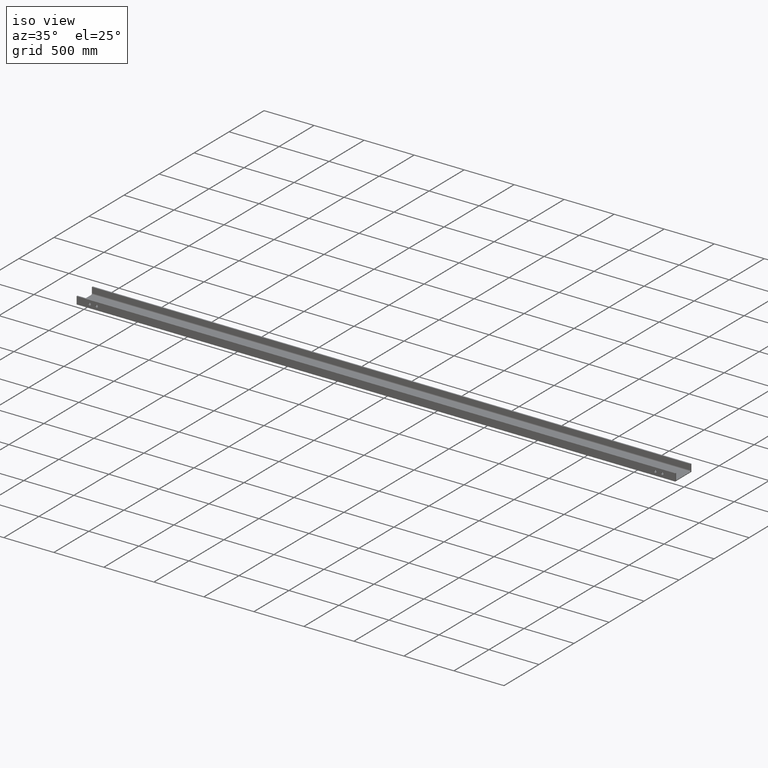
[diagram: clean part render]
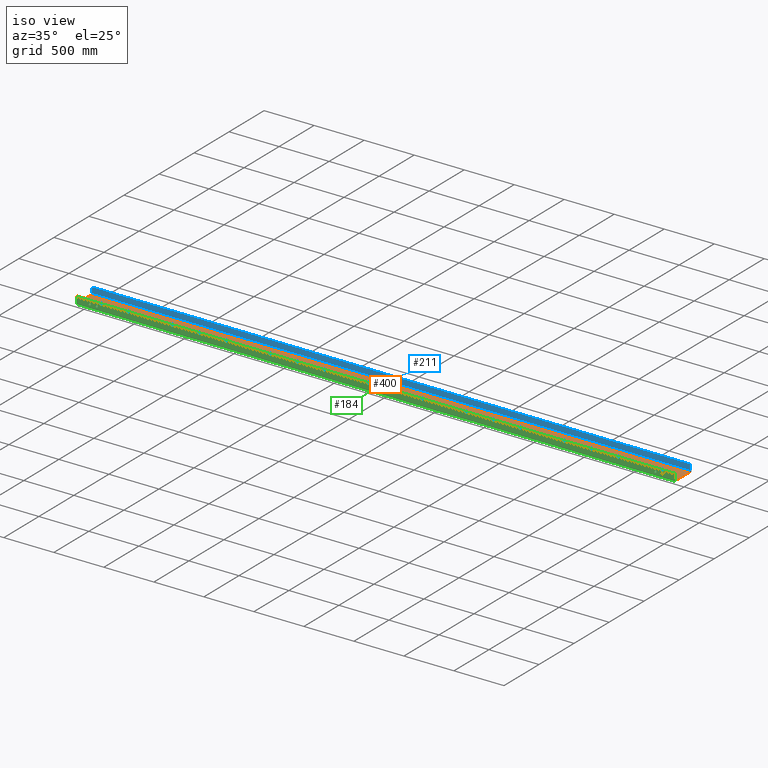
[diagram: same view with three faces highlighted in distinct colors, each labeled with its STEP entity id]
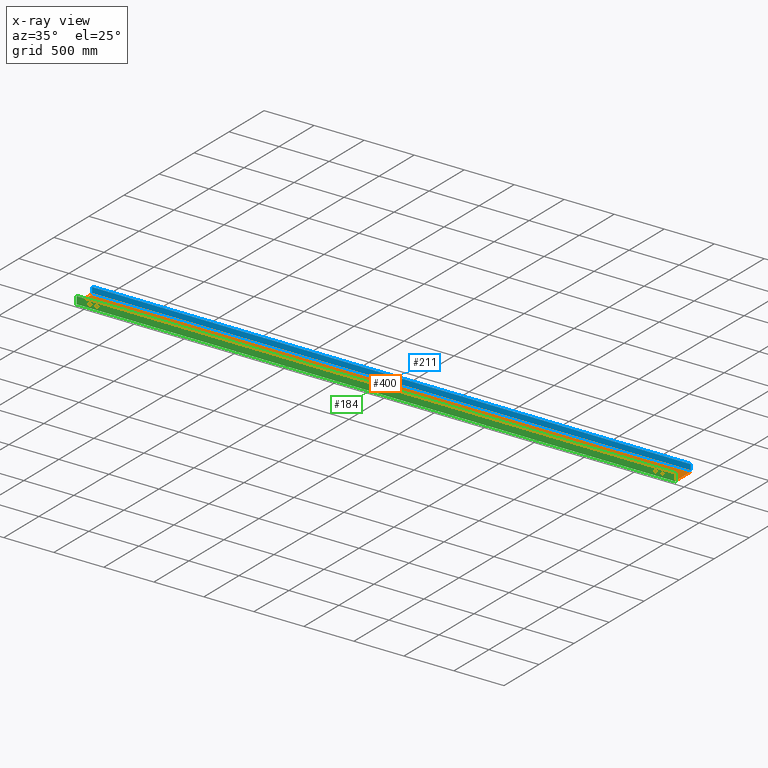
[diagram: x-ray of the same camera — body ghosted, the three highlighted faces saturated]
A machine part, iso view with three faces highlighted in distinct colors.
The next image is the same camera in x-ray (body ghosted, the three faces saturated) — at least one of them is partly hidden behind the body in this view.
Their STEP definitions:

[orange] entity #400 — the highlighted planar face has unit normal (-0, 0, 1).
#2 = LINE ( 'NONE', #35, #212 ) ;
#11 = CARTESIAN_POINT ( 'NONE',  ( -2992.500000000000000, 90.99999999999927525, -7.200000000000271960 ) ) ;
#15 = CARTESIAN_POINT ( 'NONE',  ( 2992.500000000000000, 91.00000000000110845, -7.200000000000271960 ) ) ;
#25 = DIRECTION ( 'NONE',  ( 0.000000000000000000, -1.000000000000000000, 3.550464257150331619E-15 ) ) ;
#35 = CARTESIAN_POINT ( 'NONE',  ( -2992.500000000000000, 90.99999999999927525, -7.200000000000271960 ) ) ;
#62 = DIRECTION ( 'NONE',  ( 0.000000000000000000, -1.000000000000000000, 3.550464257150332014E-15 ) ) ;
#77 = ORIENTED_EDGE ( 'NONE', *, *, #476, .T. ) ;
#80 = CARTESIAN_POINT ( 'NONE',  ( -2992.500000000000000, 90.99999999999927525, -7.200000000000271960 ) ) ;
#113 = DIRECTION ( 'NONE',  ( -1.087016172001559413E-30, 3.550464257150332014E-15, 1.000000000000000000 ) ) ;
#135 = LINE ( 'NONE', #15, #663 ) ;
#147 = EDGE_LOOP ( 'NONE', ( #414, #151, #419, #77 ) ) ;
#151 = ORIENTED_EDGE ( 'NONE', *, *, #288, .F. ) ;
#153 = DIRECTION ( 'NONE',  ( 1.000000000000000000, 3.061616997868382648E-16, -0.000000000000000000 ) ) ;
#185 = EDGE_CURVE ( 'NONE', #240, #609, #135, .T. ) ;
#212 = VECTOR ( 'NONE', #153, 1000.000000000000000 ) ;
#216 = EDGE_CURVE ( 'NONE', #446, #426, #594, .T. ) ;
#240 = VERTEX_POINT ( 'NONE', #355 ) ;
#288 = EDGE_CURVE ( 'NONE', #446, #240, #2, .T. ) ;
#291 = FACE_OUTER_BOUND ( 'NONE', #147, .T. ) ;
#336 = PLANE ( 'NONE',  #579 ) ;
#355 = CARTESIAN_POINT ( 'NONE',  ( 2992.500000000000000, 91.00000000000110845, -7.200000000000271960 ) ) ;
#360 = LINE ( 'NONE', #478, #435 ) ;
#400 = ADVANCED_FACE ( 'NONE', ( #291 ), #336, .T. ) ;
#414 = ORIENTED_EDGE ( 'NONE', *, *, #185, .F. ) ;
#419 = ORIENTED_EDGE ( 'NONE', *, *, #216, .T. ) ;
#426 = VERTEX_POINT ( 'NONE', #633 ) ;
#435 = VECTOR ( 'NONE', #584, 1000.000000000000000 ) ;
#446 = VERTEX_POINT ( 'NONE', #11 ) ;
#476 = EDGE_CURVE ( 'NONE', #426, #609, #360, .T. ) ;
#478 = CARTESIAN_POINT ( 'NONE',  ( -2992.500000000000000, -91.00000000000079581, -7.199999999999626255 ) ) ;
#579 = AXIS2_PLACEMENT_3D ( 'NONE', #627, #113, #62 ) ;
#584 = DIRECTION ( 'NONE',  ( 1.000000000000000000, 3.061616997868382648E-16, -0.000000000000000000 ) ) ;
#591 = DIRECTION ( 'NONE',  ( 0.000000000000000000, -1.000000000000000000, 3.550464257150331619E-15 ) ) ;
#594 = LINE ( 'NONE', #80, #625 ) ;
#609 = VERTEX_POINT ( 'NONE', #615 ) ;
#615 = CARTESIAN_POINT ( 'NONE',  ( 2992.500000000000000, -90.99999999999897682, -7.199999999999626255 ) ) ;
#625 = VECTOR ( 'NONE', #25, 1000.000000000000000 ) ;
#627 = CARTESIAN_POINT ( 'NONE',  ( -2992.500000000000000, 90.99999999999927525, -7.200000000000271960 ) ) ;
#633 = CARTESIAN_POINT ( 'NONE',  ( -2992.500000000000000, -91.00000000000079581, -7.199999999999626255 ) ) ;
#663 = VECTOR ( 'NONE', #591, 1000.000000000000000 ) ;

[blue] entity #211 — the highlighted planar face has unit normal (0, -1, 0).
#23 = FACE_OUTER_BOUND ( 'NONE', #632, .T. ) ;
#54 = CARTESIAN_POINT ( 'NONE',  ( -2992.500000000000000, 102.9999999999995168, 61.29999999999964899 ) ) ;
#64 = VERTEX_POINT ( 'NONE', #289 ) ;
#68 = ORIENTED_EDGE ( 'NONE', *, *, #526, .F. ) ;
#103 = VECTOR ( 'NONE', #561, 1000.000000000000000 ) ;
#116 = VECTOR ( 'NONE', #563, 1000.000000000000000 ) ;
#126 = AXIS2_PLACEMENT_3D ( 'NONE', #582, #708, #641 ) ;
#152 = CARTESIAN_POINT ( 'NONE',  ( -2992.500000000000000, 102.9999999999995168, 61.29999999999964899 ) ) ;
#170 = LINE ( 'NONE', #348, #116 ) ;
#211 = ADVANCED_FACE ( 'NONE', ( #23 ), #361, .T. ) ;
#279 = LINE ( 'NONE', #518, #103 ) ;
#289 = CARTESIAN_POINT ( 'NONE',  ( 2992.500000000000000, 103.0000000000011084, 4.799999999999649880 ) ) ;
#312 = VERTEX_POINT ( 'NONE', #671 ) ;
#323 = VERTEX_POINT ( 'NONE', #490 ) ;
#340 = CARTESIAN_POINT ( 'NONE',  ( 2992.500000000000000, 103.0000000000013500, 61.29999999999964899 ) ) ;
#348 = CARTESIAN_POINT ( 'NONE',  ( -2992.500000000000000, 102.9999999999992752, 4.799999999999649880 ) ) ;
#361 = PLANE ( 'NONE',  #126 ) ;
#418 = EDGE_CURVE ( 'NONE', #312, #64, #520, .T. ) ;
#447 = DIRECTION ( 'NONE',  ( 0.000000000000000000, -3.684368444552508235E-15, -1.000000000000000000 ) ) ;
#465 = EDGE_CURVE ( 'NONE', #323, #64, #170, .T. ) ;
#487 = ORIENTED_EDGE ( 'NONE', *, *, #705, .T. ) ;
#489 = ORIENTED_EDGE ( 'NONE', *, *, #465, .T. ) ;
#490 = CARTESIAN_POINT ( 'NONE',  ( -2992.500000000000000, 102.9999999999992752, 4.799999999999649880 ) ) ;
#518 = CARTESIAN_POINT ( 'NONE',  ( -2992.500000000000000, 102.9999999999995168, 61.29999999999964899 ) ) ;
#520 = LINE ( 'NONE', #340, #651 ) ;
#526 = EDGE_CURVE ( 'NONE', #716, #312, #728, .T. ) ;
#553 = ORIENTED_EDGE ( 'NONE', *, *, #418, .F. ) ;
#561 = DIRECTION ( 'NONE',  ( 0.000000000000000000, -3.684368444552508235E-15, -1.000000000000000000 ) ) ;
#563 = DIRECTION ( 'NONE',  ( 1.000000000000000000, 3.061616997868382648E-16, -0.000000000000000000 ) ) ;
#582 = CARTESIAN_POINT ( 'NONE',  ( -2992.500000000000000, 102.9999999999995168, 61.29999999999964899 ) ) ;
#617 = VECTOR ( 'NONE', #718, 1000.000000000000000 ) ;
#632 = EDGE_LOOP ( 'NONE', ( #553, #68, #487, #489 ) ) ;
#641 = DIRECTION ( 'NONE',  ( 0.000000000000000000, -3.684368444552508235E-15, -1.000000000000000000 ) ) ;
#651 = VECTOR ( 'NONE', #447, 1000.000000000000000 ) ;
#671 = CARTESIAN_POINT ( 'NONE',  ( 2992.500000000000000, 103.0000000000013500, 61.29999999999964899 ) ) ;
#705 = EDGE_CURVE ( 'NONE', #716, #323, #279, .T. ) ;
#708 = DIRECTION ( 'NONE',  ( 3.061616997868382648E-16, -1.000000000000000000, 3.684368444552508235E-15 ) ) ;
#716 = VERTEX_POINT ( 'NONE', #54 ) ;
#718 = DIRECTION ( 'NONE',  ( 1.000000000000000000, 3.061616997868382648E-16, -0.000000000000000000 ) ) ;
#728 = LINE ( 'NONE', #152, #617 ) ;

[green] entity #184 — the highlighted planar face has unit normal (-0, 1, -0).
#10 = DIRECTION ( 'NONE',  ( -0.000000000000000000, -1.000000000000000000, -0.000000000000000000 ) ) ;
#14 = ORIENTED_EDGE ( 'NONE', *, *, #46, .F. ) ;
#24 = ORIENTED_EDGE ( 'NONE', *, *, #149, .F. ) ;
#33 = DIRECTION ( 'NONE',  ( 1.000000000000000000, 3.061616997868382648E-16, -0.000000000000000000 ) ) ;
#41 = AXIS2_PLACEMENT_3D ( 'NONE', #597, #733, #494 ) ;
#46 = EDGE_CURVE ( 'NONE', #404, #668, #710, .T. ) ;
#50 = CARTESIAN_POINT ( 'NONE',  ( -2862.500000000000455, -114.9999999999997300, 23.80000000000038796 ) ) ;
#53 = DIRECTION ( 'NONE',  ( -0.000000000000000000, -1.000000000000000000, -0.000000000000000000 ) ) ;
#60 = CARTESIAN_POINT ( 'NONE',  ( -2862.500000000000455, -114.9999999999997300, 35.80000000000040217 ) ) ;
#70 = CARTESIAN_POINT ( 'NONE',  ( 2862.500000000000455, -114.9999999999997300, 11.80000000000037552 ) ) ;
#76 = ORIENTED_EDGE ( 'NONE', *, *, #358, .F. ) ;
#104 = VERTEX_POINT ( 'NONE', #60 ) ;
#131 = CIRCLE ( 'NONE', #436, 12.00000000000001066 ) ;
#136 = EDGE_CURVE ( 'NONE', #297, #327, #480, .T. ) ;
#138 = FACE_BOUND ( 'NONE', #284, .T. ) ;
#140 = PLANE ( 'NONE',  #676 ) ;
#142 = CARTESIAN_POINT ( 'NONE',  ( -2792.500000000000455, -114.9999999999997300, 35.80000000000038796 ) ) ;
#145 = CARTESIAN_POINT ( 'NONE',  ( -2862.500000000000455, -114.9999999999997300, 11.80000000000037552 ) ) ;
#149 = EDGE_CURVE ( 'NONE', #668, #404, #468, .T. ) ;
#156 = DIRECTION ( 'NONE',  ( 0.000000000000000000, 0.000000000000000000, -1.000000000000000000 ) ) ;
#158 = CARTESIAN_POINT ( 'NONE',  ( 2992.500000000000000, -114.9999999999986926, 61.30000000000040217 ) ) ;
#160 = DIRECTION ( 'NONE',  ( 1.000000000000000000, 3.061616997868382648E-16, -0.000000000000000000 ) ) ;
#163 = AXIS2_PLACEMENT_3D ( 'NONE', #623, #688, #614 ) ;
#164 = AXIS2_PLACEMENT_3D ( 'NONE', #384, #493, #540 ) ;
#168 = DIRECTION ( 'NONE',  ( 0.000000000000000000, 0.000000000000000000, -1.000000000000000000 ) ) ;
#183 = DIRECTION ( 'NONE',  ( 0.000000000000000000, 0.000000000000000000, -1.000000000000000000 ) ) ;
#184 = ADVANCED_FACE ( 'NONE', ( #654, #138, #196, #473, #535 ), #140, .F. ) ;
#196 = FACE_BOUND ( 'NONE', #464, .T. ) ;
#199 = CIRCLE ( 'NONE', #373, 12.00000000000001066 ) ;
#203 = EDGE_LOOP ( 'NONE', ( #390, #690, #321, #543 ) ) ;
#209 = CARTESIAN_POINT ( 'NONE',  ( 2862.500000000000455, -114.9999999999997300, 23.80000000000038796 ) ) ;
#214 = LINE ( 'NONE', #438, #638 ) ;
#238 = VERTEX_POINT ( 'NONE', #528 ) ;
#244 = VERTEX_POINT ( 'NONE', #70 ) ;
#251 = VERTEX_POINT ( 'NONE', #585 ) ;
#262 = EDGE_CURVE ( 'NONE', #244, #238, #270, .T. ) ;
#270 = CIRCLE ( 'NONE', #41, 12.00000000000001066 ) ;
#274 = LINE ( 'NONE', #715, #567 ) ;
#283 = CIRCLE ( 'NONE', #702, 12.00000000000001066 ) ;
#284 = EDGE_LOOP ( 'NONE', ( #14, #24 ) ) ;
#297 = VERTEX_POINT ( 'NONE', #439 ) ;
#316 = VERTEX_POINT ( 'NONE', #158 ) ;
#321 = ORIENTED_EDGE ( 'NONE', *, *, #499, .F. ) ;
#325 = ORIENTED_EDGE ( 'NONE', *, *, #552, .F. ) ;
#327 = VERTEX_POINT ( 'NONE', #549 ) ;
#331 = CARTESIAN_POINT ( 'NONE',  ( -2792.500000000000455, -114.9999999999997300, 23.80000000000037730 ) ) ;
#352 = DIRECTION ( 'NONE',  ( -3.061616997868382648E-16, 1.000000000000000000, -3.700743415417188731E-15 ) ) ;
#357 = DIRECTION ( 'NONE',  ( 0.000000000000000000, 3.700743415417188731E-15, 1.000000000000000000 ) ) ;
#358 = EDGE_CURVE ( 'NONE', #327, #297, #199, .T. ) ;
#359 = EDGE_LOOP ( 'NONE', ( #325, #538 ) ) ;
#364 = CARTESIAN_POINT ( 'NONE',  ( -2992.500000000000000, -115.0000000000007958, -13.69999999999959783 ) ) ;
#365 = CARTESIAN_POINT ( 'NONE',  ( -2992.500000000000000, -115.0000000000007958, -13.69999999999959783 ) ) ;
#372 = DIRECTION ( 'NONE',  ( -0.000000000000000000, -1.000000000000000000, -0.000000000000000000 ) ) ;
#373 = AXIS2_PLACEMENT_3D ( 'NONE', #616, #372, #559 ) ;
#376 = CARTESIAN_POINT ( 'NONE',  ( -2992.500000000000000, -115.0000000000007958, -13.69999999999959783 ) ) ;
#384 = CARTESIAN_POINT ( 'NONE',  ( -2862.500000000000455, -114.9999999999997300, 23.80000000000038796 ) ) ;
#390 = ORIENTED_EDGE ( 'NONE', *, *, #598, .T. ) ;
#392 = DIRECTION ( 'NONE',  ( 0.000000000000000000, 0.000000000000000000, -1.000000000000000000 ) ) ;
#401 = VECTOR ( 'NONE', #420, 1000.000000000000000 ) ;
#404 = VERTEX_POINT ( 'NONE', #516 ) ;
#420 = DIRECTION ( 'NONE',  ( 0.000000000000000000, 3.700743415417188731E-15, 1.000000000000000000 ) ) ;
#433 = DIRECTION ( 'NONE',  ( -0.000000000000000000, -1.000000000000000000, -0.000000000000000000 ) ) ;
#436 = AXIS2_PLACEMENT_3D ( 'NONE', #50, #10, #183 ) ;
#438 = CARTESIAN_POINT ( 'NONE',  ( 2992.500000000000000, -114.9999999999989626, -13.69999999999959783 ) ) ;
#439 = CARTESIAN_POINT ( 'NONE',  ( 2792.500000000000455, -114.9999999999997300, 11.80000000000036664 ) ) ;
#464 = EDGE_LOOP ( 'NONE', ( #576, #76 ) ) ;
#468 = CIRCLE ( 'NONE', #531, 12.00000000000001066 ) ;
#473 = FACE_OUTER_BOUND ( 'NONE', #203, .T. ) ;
#480 = CIRCLE ( 'NONE', #163, 12.00000000000001066 ) ;
#483 = VECTOR ( 'NONE', #160, 1000.000000000000000 ) ;
#493 = DIRECTION ( 'NONE',  ( -0.000000000000000000, -1.000000000000000000, -0.000000000000000000 ) ) ;
#494 = DIRECTION ( 'NONE',  ( 0.000000000000000000, 0.000000000000000000, -1.000000000000000000 ) ) ;
#499 = EDGE_CURVE ( 'NONE', #588, #251, #704, .T. ) ;
#512 = CIRCLE ( 'NONE', #164, 12.00000000000001066 ) ;
#516 = CARTESIAN_POINT ( 'NONE',  ( -2792.500000000000455, -114.9999999999997300, 11.80000000000036664 ) ) ;
#522 = ORIENTED_EDGE ( 'NONE', *, *, #262, .F. ) ;
#528 = CARTESIAN_POINT ( 'NONE',  ( 2862.500000000000455, -114.9999999999997300, 35.80000000000040217 ) ) ;
#529 = EDGE_CURVE ( 'NONE', #251, #316, #612, .T. ) ;
#531 = AXIS2_PLACEMENT_3D ( 'NONE', #331, #681, #392 ) ;
#535 = FACE_BOUND ( 'NONE', #592, .T. ) ;
#538 = ORIENTED_EDGE ( 'NONE', *, *, #723, .F. ) ;
#540 = DIRECTION ( 'NONE',  ( 0.000000000000000000, 0.000000000000000000, -1.000000000000000000 ) ) ;
#543 = ORIENTED_EDGE ( 'NONE', *, *, #642, .T. ) ;
#549 = CARTESIAN_POINT ( 'NONE',  ( 2792.500000000000455, -114.9999999999997300, 35.80000000000038796 ) ) ;
#552 = EDGE_CURVE ( 'NONE', #562, #104, #512, .T. ) ;
#559 = DIRECTION ( 'NONE',  ( 0.000000000000000000, 0.000000000000000000, -1.000000000000000000 ) ) ;
#562 = VERTEX_POINT ( 'NONE', #145 ) ;
#567 = VECTOR ( 'NONE', #33, 1000.000000000000000 ) ;
#576 = ORIENTED_EDGE ( 'NONE', *, *, #136, .F. ) ;
#585 = CARTESIAN_POINT ( 'NONE',  ( -2992.500000000000000, -115.0000000000005116, 61.30000000000040217 ) ) ;
#588 = VERTEX_POINT ( 'NONE', #376 ) ;
#592 = EDGE_LOOP ( 'NONE', ( #522, #653 ) ) ;
#597 = CARTESIAN_POINT ( 'NONE',  ( 2862.500000000000455, -114.9999999999997300, 23.80000000000038796 ) ) ;
#598 = EDGE_CURVE ( 'NONE', #600, #316, #214, .T. ) ;
#600 = VERTEX_POINT ( 'NONE', #669 ) ;
#608 = CARTESIAN_POINT ( 'NONE',  ( -2992.500000000000000, -115.0000000000005116, 61.30000000000040217 ) ) ;
#612 = LINE ( 'NONE', #608, #483 ) ;
#614 = DIRECTION ( 'NONE',  ( 0.000000000000000000, 0.000000000000000000, -1.000000000000000000 ) ) ;
#616 = CARTESIAN_POINT ( 'NONE',  ( 2792.500000000000455, -114.9999999999997300, 23.80000000000037730 ) ) ;
#622 = EDGE_CURVE ( 'NONE', #238, #244, #283, .T. ) ;
#623 = CARTESIAN_POINT ( 'NONE',  ( 2792.500000000000455, -114.9999999999997300, 23.80000000000037730 ) ) ;
#638 = VECTOR ( 'NONE', #673, 1000.000000000000000 ) ;
#642 = EDGE_CURVE ( 'NONE', #588, #600, #274, .T. ) ;
#653 = ORIENTED_EDGE ( 'NONE', *, *, #622, .F. ) ;
#654 = FACE_BOUND ( 'NONE', #359, .T. ) ;
#668 = VERTEX_POINT ( 'NONE', #142 ) ;
#669 = CARTESIAN_POINT ( 'NONE',  ( 2992.500000000000000, -114.9999999999989626, -13.69999999999959783 ) ) ;
#673 = DIRECTION ( 'NONE',  ( 0.000000000000000000, 3.700743415417188731E-15, 1.000000000000000000 ) ) ;
#676 = AXIS2_PLACEMENT_3D ( 'NONE', #365, #352, #357 ) ;
#681 = DIRECTION ( 'NONE',  ( -0.000000000000000000, -1.000000000000000000, -0.000000000000000000 ) ) ;
#684 = CARTESIAN_POINT ( 'NONE',  ( -2792.500000000000455, -114.9999999999997300, 23.80000000000037730 ) ) ;
#688 = DIRECTION ( 'NONE',  ( -0.000000000000000000, -1.000000000000000000, -0.000000000000000000 ) ) ;
#690 = ORIENTED_EDGE ( 'NONE', *, *, #529, .F. ) ;
#702 = AXIS2_PLACEMENT_3D ( 'NONE', #209, #433, #156 ) ;
#704 = LINE ( 'NONE', #364, #401 ) ;
#710 = CIRCLE ( 'NONE', #725, 12.00000000000001066 ) ;
#715 = CARTESIAN_POINT ( 'NONE',  ( -2992.500000000000000, -115.0000000000007958, -13.69999999999959783 ) ) ;
#723 = EDGE_CURVE ( 'NONE', #104, #562, #131, .T. ) ;
#725 = AXIS2_PLACEMENT_3D ( 'NONE', #684, #53, #168 ) ;
#733 = DIRECTION ( 'NONE',  ( -0.000000000000000000, -1.000000000000000000, -0.000000000000000000 ) ) ;